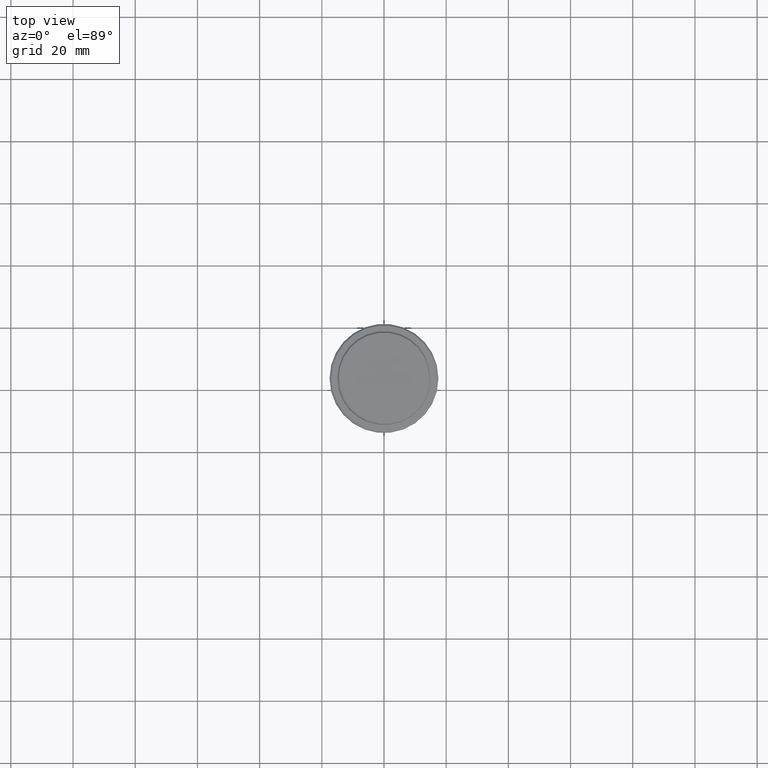
[diagram: clean part render]
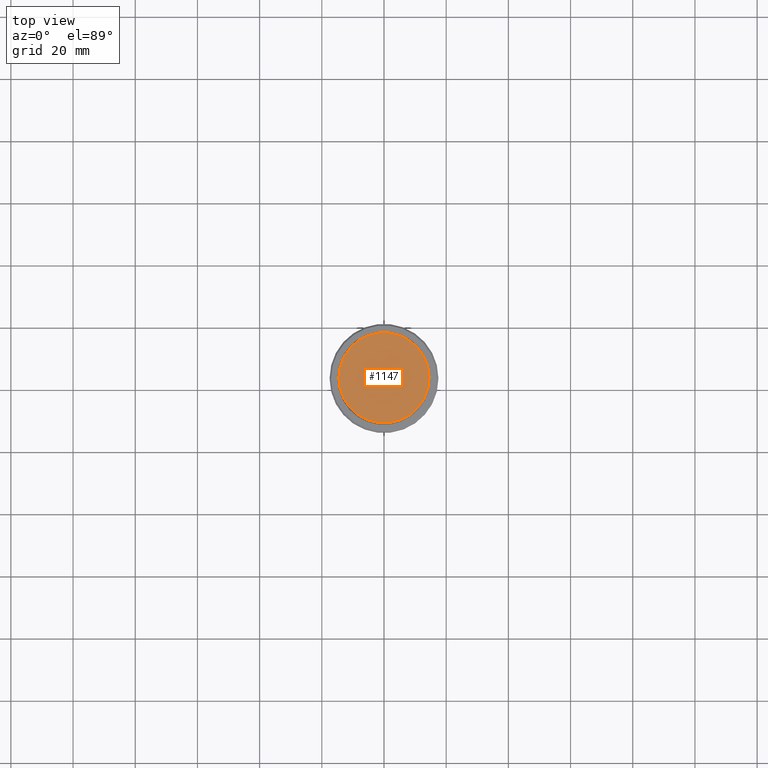
[diagram: same view with one face highlighted and labeled with its STEP entity id]
A machine part, top view. The second image highlights one B-rep face of the part: STEP entity #1147.
In plain terms, the highlighted planar face has unit normal (0, -0, 1).
Its self-contained STEP definition (entity closure, byte-faithful):
#112 = CARTESIAN_POINT ( 'NONE',  ( 0.000000000000000000, 0.000000000000000000, 0.000000000000000000 ) ) ;
#127 = DIRECTION ( 'NONE',  ( 1.000000000000000000, 0.000000000000000000, 0.000000000000000000 ) ) ;
#215 = CARTESIAN_POINT ( 'NONE',  ( 0.000000000000000000, 0.000000000000000000, 0.000000000000000000 ) ) ;
#228 = EDGE_CURVE ( 'NONE', #257, #779, #1311, .T. ) ;
#257 = VERTEX_POINT ( 'NONE', #622 ) ;
#278 = AXIS2_PLACEMENT_3D ( 'NONE', #112, #1216, #127 ) ;
#401 = DIRECTION ( 'NONE',  ( -0.000000000000000000, -0.000000000000000000, 1.000000000000000000 ) ) ;
#427 = ORIENTED_EDGE ( 'NONE', *, *, #838, .T. ) ;
#451 = AXIS2_PLACEMENT_3D ( 'NONE', #215, #401, #649 ) ;
#503 = DIRECTION ( 'NONE',  ( 1.000000000000000000, 0.000000000000000000, 0.000000000000000000 ) ) ;
#523 = CARTESIAN_POINT ( 'NONE',  ( 0.000000000000000000, 0.000000000000000000, 0.000000000000000000 ) ) ;
#532 = CARTESIAN_POINT ( 'NONE',  ( 14.50000000000001066, 1.806354028742346591E-15, 0.000000000000000000 ) ) ;
#622 = CARTESIAN_POINT ( 'NONE',  ( -14.50000000000001066, 0.000000000000000000, 0.000000000000000000 ) ) ;
#649 = DIRECTION ( 'NONE',  ( 1.000000000000000000, 0.000000000000000000, 0.000000000000000000 ) ) ;
#779 = VERTEX_POINT ( 'NONE', #532 ) ;
#838 = EDGE_CURVE ( 'NONE', #779, #257, #1268, .T. ) ;
#842 = FACE_OUTER_BOUND ( 'NONE', #1321, .T. ) ;
#1060 = PLANE ( 'NONE',  #1115 ) ;
#1115 = AXIS2_PLACEMENT_3D ( 'NONE', #523, #1277, #503 ) ;
#1147 = ADVANCED_FACE ( 'NONE', ( #842 ), #1060, .T. ) ;
#1216 = DIRECTION ( 'NONE',  ( -0.000000000000000000, -0.000000000000000000, 1.000000000000000000 ) ) ;
#1264 = ORIENTED_EDGE ( 'NONE', *, *, #228, .T. ) ;
#1268 = CIRCLE ( 'NONE', #278, 14.50000000000001066 ) ;
#1277 = DIRECTION ( 'NONE',  ( 0.000000000000000000, -0.000000000000000000, 1.000000000000000000 ) ) ;
#1311 = CIRCLE ( 'NONE', #451, 14.50000000000001066 ) ;
#1321 = EDGE_LOOP ( 'NONE', ( #1264, #427 ) ) ;